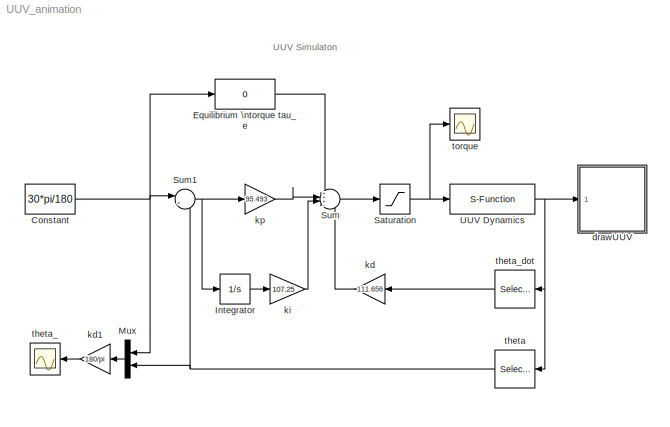
MODEL UUV_animation
KIND model
BLOCK [Constant] Constant
  SID = 68
  Value = 30*pi/180
BLOCK [Fcn] Equilibrium \ntorque tau_e
  Expr = 0
  SID = 46
BLOCK [Integrator] Integrator
  Ports = [1, 1]
  SID = 69
BLOCK [Mux] Mux
  DisplayOption = bar
  Inputs = 2
  Ports = [2, 1]
  SID = 47
BLOCK [Saturate] Saturation
  InputPortMap = u0
  LowerLimit = -50
  Ports = [1, 1]
  SID = 48
  UpperLimit = 50
BLOCK [Sum] Sum
  IconShape = round
  InputSameDT = off
  Inputs = +++-
  OutDataTypeStr = Inherit: Inherit via internal rule
  Ports = [4, 1]
  SID = 50
  SaturateOnIntegerOverflow = off
BLOCK [Sum] Sum1
  IconShape = round
  InputSameDT = off
  Inputs = |+-
  OutDataTypeStr = Inherit: Inherit via internal rule
  Ports = [2, 1]
  SID = 51
  SaturateOnIntegerOverflow = off
BLOCK [S-Function] UUV Dynamics
  EnableBusSupport = off
  FunctionName = UUV_dynamics
  Parameters = P
  Ports = [1, 1]
  SID = 45
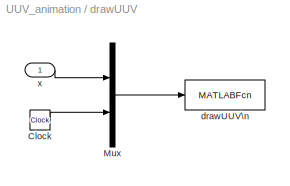
BLOCK [SubSystem] drawUUV
  Ports = [1]
  RequestExecContextInheritance = off
  SID = 52
BLOCK [Clock] drawUUV/Clock
  SID = 54
BLOCK [Mux] drawUUV/Mux
  DisplayOption = bar
  Inputs = 2
  Ports = [2, 1]
  SID = 55
BLOCK [MATLABFcn] drawUUV/drawUUV\n
  MATLABFcn = drawUUV(u,MajorAxis,MinorAxis,C_M)
  OutputDimensions = 0
  Ports = [1]
  SID = 56
  SampleTime = 0.1
BLOCK [Inport] drawUUV/x
  IconDisplay = Port number
  SID = 53
BLOCK [Gain] kd
  Gain = 111.656
  OutDataTypeStr = Inherit: Inherit via internal rule
  ParamDataTypeStr = Inherit: Inherit via internal rule
  SID = 57
  SaturateOnIntegerOverflow = off
BLOCK [Gain] kd1
  Gain = 180/pi
  OutDataTypeStr = Inherit: Inherit via internal rule
  ParamDataTypeStr = Inherit: Inherit via internal rule
  SID = 58
  SaturateOnIntegerOverflow = off
BLOCK [Gain] ki
  Gain = 107.25
  OutDataTypeStr = Inherit: Inherit via internal rule
  ParamDataTypeStr = Inherit: Inherit via internal rule
  SID = 66
  SaturateOnIntegerOverflow = off
BLOCK [Gain] kp
  Gain = 95.493
  OutDataTypeStr = Inherit: Inherit via internal rule
  ParamDataTypeStr = Inherit: Inherit via internal rule
  SID = 59
  SaturateOnIntegerOverflow = off
BLOCK [Selector] theta
  Indices = [1]
  InputPortWidth = 2
  Ports = [1, 1]
  SID = 60
BLOCK [Scope] theta_
  DataFormat = StructureWithTime
  Floating = off
  NumInputPorts = 1
  Ports = [1]
  SID = 61
  SampleTime = 0
  SaveName = ScopeData1
  ShowLegends = off
  TimeRange = 100
  YMax = 2250
  YMin = 0
BLOCK [Selector] theta_dot
  Indices = [2]
  InputPortWidth = 2
  Ports = [1, 1]
  SID = 62
BLOCK [Scope] torque
  DataFormat = StructureWithTime
  Floating = off
  NumInputPorts = 1
  Ports = [1]
  SID = 63
  SampleTime = 0
  ShowLegends = off
  TimeRange = 1000
  YMax = 50
  YMin = -20
ANNOTATION (root): UUV Simulaton
NET Constant:1 -> Equilibrium \ntorque tau_e:1, Mux:1, Sum1:1
LINE Equilibrium \ntorque tau_e:1 -> Sum:1
LINE Integrator:1 -> ki:1
LINE Mux:1 -> kd1:1
NET Saturation:1 -> UUV Dynamics:1, torque:1
NET Sum1:1 -> Integrator:1, kp:1
LINE Sum:1 -> Saturation:1
NET UUV Dynamics:1 -> drawUUV:1, theta:1, theta_dot:1
LINE drawUUV/Clock:1 -> drawUUV/Mux:2
LINE drawUUV/Mux:1 -> drawUUV/drawUUV\n:1
LINE drawUUV/x:1 -> drawUUV/Mux:1
LINE kd1:1 -> theta_:1
LINE kd:1 -> Sum:4
LINE ki:1 -> Sum:3
LINE kp:1 -> Sum:2
NET theta:1 -> Mux:2, Sum1:2
LINE theta_dot:1 -> kd:1
note: NET lines group one-source signal fan-out (src -> all destinations, sorted); 1:1 wires keep LINE
